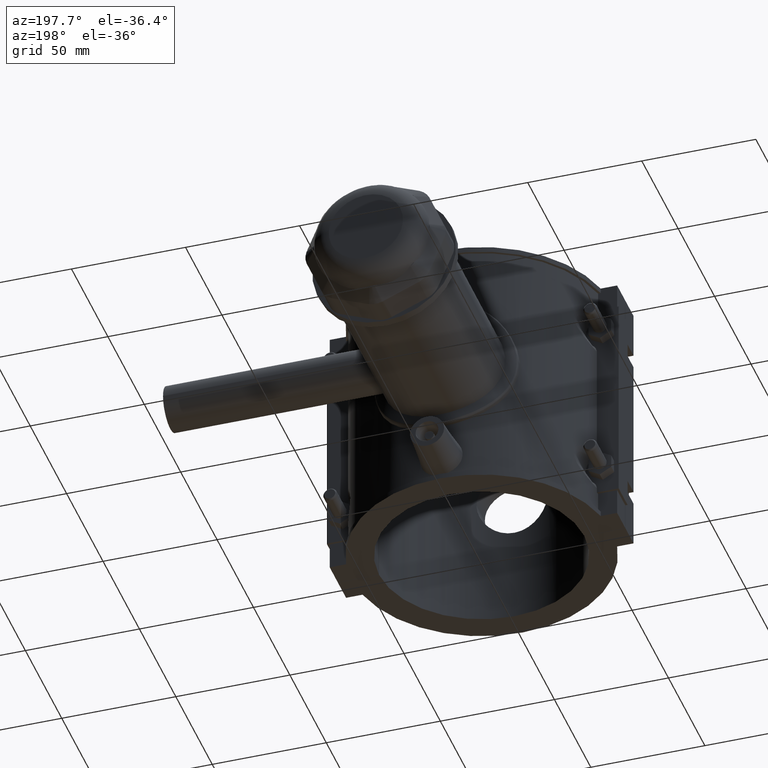
[diagram: clean part render]
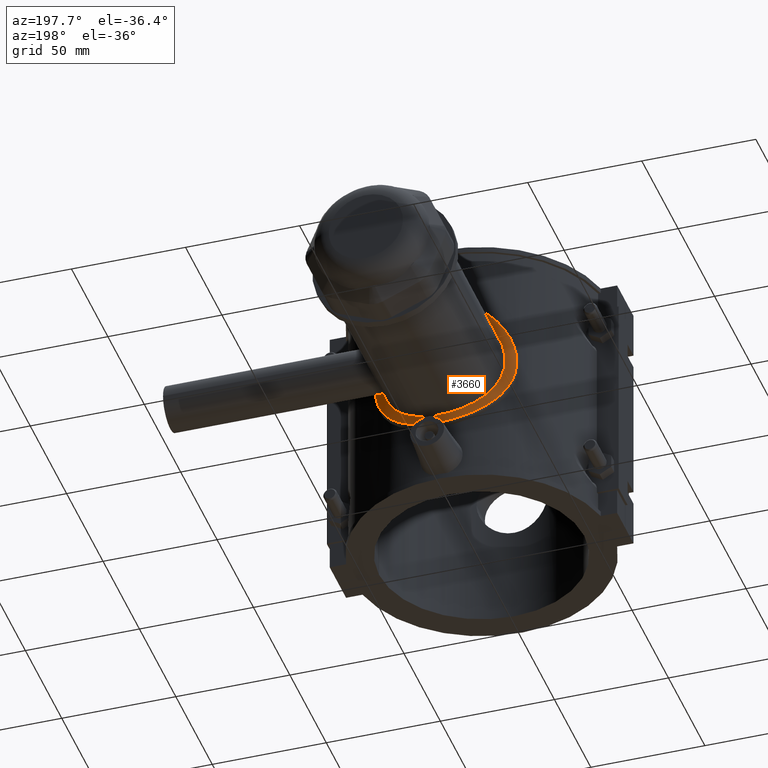
[diagram: same view with one face highlighted and labeled with its STEP entity id]
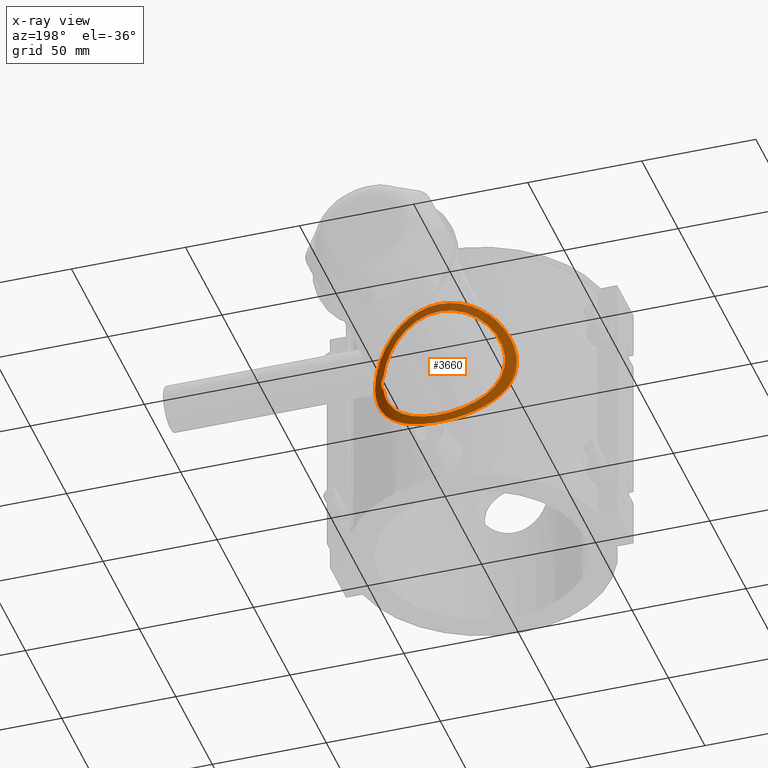
[diagram: x-ray of the same camera — body ghosted, the highlighted face saturated]
A machine part, auxiliary view. The second image highlights one B-rep face of the part: STEP entity #3660.
The next image is the same camera in x-ray: the body ghosted, the highlighted face saturated — about 32% of this face is hidden behind the body in this view.
In plain terms, the highlighted cylindrical surface (partial cylindrical patch) has radius 58.032 mm, axis along (0, 0, -1).
Its self-contained STEP definition (entity closure, byte-faithful):
#917=FACE_BOUND('',#1264,.T.);
#1028=FACE_OUTER_BOUND('',#1263,.T.);
#1263=EDGE_LOOP('',(#2753));
#1264=EDGE_LOOP('',(#2754,#2755));
#1462=B_SPLINE_CURVE_WITH_KNOTS('',3,(#5209,#5210,#5211,#5212,#5213,#5214,
#5215,#5216,#5217,#5218),.UNSPECIFIED.,.F.,.F.,(4,2,2,2,4),(1.34030727994941,
1.46295896579092,1.69628648260721,1.92961399942351,2.05226568526502),
 .UNSPECIFIED.);
#1505=B_SPLINE_CURVE_WITH_KNOTS('',3,(#5990,#5991,#5992,#5993,#5994,#5995,
#5996,#5997,#5998,#5999,#6000,#6001,#6002,#6003,#6004,#6005,#6006,#6007,
#6008,#6009,#6010,#6011,#6012,#6013,#6014,#6015,#6016,#6017,#6018,#6019,
#6020,#6021,#6022,#6023,#6024,#6025,#6026,#6027,#6028,#6029,#6030,#6031,
#6032,#6033,#6034,#6035,#6036,#6037,#6038,#6039,#6040,#6041,#6042,#6043,
#6044,#6045,#6046,#6047,#6048,#6049,#6050,#6051,#6052,#6053,#6054,#6055),
 .UNSPECIFIED.,.F.,.F.,(4,2,2,2,2,2,2,2,2,2,2,2,2,2,2,2,2,2,2,2,2,2,2,2,
2,2,2,2,2,2,2,2,4),(0.336490426190362,0.513364246909264,1.02672849381853,
1.54009274072779,2.05345698763705,2.56584796086913,3.0782389341012,3.59062990733328,
4.10302088056535,4.61541185379742,5.1278028270295,5.64019380026157,6.15258477349364,
6.66594902040291,7.17931326731217,7.69267751422144,8.2060417611307,8.71940600803996,
9.23277025494923,9.74613450185849,10.2594987487678,10.7718897219998,11.2842806952319,
11.796671668464,12.3090626416961,12.8214536149281,13.3338445881602,13.8462355613923,
14.3586265346243,14.8719907815336,15.3853550284429,15.8987192753521,16.075593096071),
 .UNSPECIFIED.);
#1508=B_SPLINE_CURVE_WITH_KNOTS('',3,(#6307,#6308,#6309,#6310,#6311,#6312,
#6313,#6314,#6315,#6316,#6317,#6318,#6319,#6320,#6321,#6322,#6323,#6324,
#6325,#6326,#6327,#6328,#6329),.UNSPECIFIED.,.T.,.F.,(4,1,1,1,1,1,1,1,1,
1,1,1,1,1,1,1,1,1,1,1,4),(9.7278193872929,10.4226636292424,11.1175078711919,
12.5071963550909,13.8968848389899,14.5917290809393,15.2865733228888,16.2130323121548,
18.0659502906868,18.9924092799528,19.9188682692188,20.8453272584848,21.7717862477508,
22.6982452370168,23.6247042262828,24.5511632155487,25.4776222048147,26.4040811940807,
27.7937696779797,28.4886139199292,29.1834581618787),.UNSPECIFIED.);
#1572=VERTEX_POINT('',#5207);
#1573=VERTEX_POINT('',#5208);
#1664=VERTEX_POINT('',#6305);
#1923=EDGE_CURVE('',#1572,#1573,#1462,.T.);
#2066=EDGE_CURVE('',#1573,#1572,#1505,.T.);
#2072=EDGE_CURVE('',#1664,#1664,#1508,.T.);
#2753=ORIENTED_EDGE('',*,*,#2072,.F.);
#2754=ORIENTED_EDGE('',*,*,#1923,.T.);
#2755=ORIENTED_EDGE('',*,*,#2066,.T.);
#3550=CYLINDRICAL_SURFACE('',#3909,58.032);
#3660=ADVANCED_FACE('',(#1028,#917),#3550,.T.);
#3909=AXIS2_PLACEMENT_3D('',#6353,#4394,#4395);
#4394=DIRECTION('center_axis',(0.,0.,-1.));
#4395=DIRECTION('ref_axis',(1.,0.,0.));
#5207=CARTESIAN_POINT('',(26.5571947943461,51.5987250681173,-3.40822969518685));
#5208=CARTESIAN_POINT('',(26.5571947943461,51.5987250681173,3.40822969518689));
#5209=CARTESIAN_POINT('Ctrl Pts',(26.5571947943462,51.5987250681173,-3.40822969518686));
#5210=CARTESIAN_POINT('Ctrl Pts',(26.7949117004733,51.4763752586289,-3.07073947306713));
#5211=CARTESIAN_POINT('Ctrl Pts',(27.0080779454478,51.3645329109714,-2.70457723681071));
#5212=CARTESIAN_POINT('Ctrl Pts',(27.5111274343721,51.0978487886751,-1.58602840086848));
#5213=CARTESIAN_POINT('Ctrl Pts',(27.6895833121411,51.,-0.77775838938765));
#5214=CARTESIAN_POINT('Ctrl Pts',(27.6895833121411,51.,0.77775838938765));
#5215=CARTESIAN_POINT('Ctrl Pts',(27.5111274343721,51.0978487886751,1.58602840086848));
#5216=CARTESIAN_POINT('Ctrl Pts',(27.0080779454478,51.3645329109714,2.70457723681072));
#5217=CARTESIAN_POINT('Ctrl Pts',(26.7949117004733,51.4763752586289,3.07073947306715));
#5218=CARTESIAN_POINT('Ctrl Pts',(26.5571947943461,51.5987250681173,3.40822969518688));
#5990=CARTESIAN_POINT('Ctrl Pts',(26.5571947943461,51.5987250681173,3.40822969518689));
#5991=CARTESIAN_POINT('Ctrl Pts',(26.4800132941901,51.6384493855584,4.00963403629059));
#5992=CARTESIAN_POINT('Ctrl Pts',(26.3819697486127,51.688707694066,4.61151769150396));
#5993=CARTESIAN_POINT('Ctrl Pts',(25.9176002863459,51.9243779518539,6.95180117817221));
#5994=CARTESIAN_POINT('Ctrl Pts',(25.3937610878862,52.1866439819032,8.6736565929714));
#5995=CARTESIAN_POINT('Ctrl Pts',(24.0205045253944,52.8327944564397,11.9620613228521));
#5996=CARTESIAN_POINT('Ctrl Pts',(23.1699969532652,53.2163937273955,13.5317154272648));
#5997=CARTESIAN_POINT('Ctrl Pts',(21.2140143143899,54.0259096784558,16.4292932972868));
#5998=CARTESIAN_POINT('Ctrl Pts',(20.1082959771635,54.4510411519475,17.7572721553761));
#5999=CARTESIAN_POINT('Ctrl Pts',(17.7595007772698,55.2616840467427,20.1060673552698));
#6000=CARTESIAN_POINT('Ctrl Pts',(16.4326119937272,55.6770326718015,21.2114817635876));
#6001=CARTESIAN_POINT('Ctrl Pts',(13.5345396493294,56.4515627818206,23.168382165925));
#6002=CARTESIAN_POINT('Ctrl Pts',(11.9632928238325,56.8101212212733,24.0200210129507));
#6003=CARTESIAN_POINT('Ctrl Pts',(8.67160142553016,57.4048219136669,25.3945885607132));
#6004=CARTESIAN_POINT('Ctrl Pts',(6.94809250869672,57.641064706949,25.9186125520985));
#6005=CARTESIAN_POINT('Ctrl Pts',(3.46630764737261,57.9547499464772,26.6089304076598));
#6006=CARTESIAN_POINT('Ctrl Pts',(1.70796991077358,58.032,26.775));
#6007=CARTESIAN_POINT('Ctrl Pts',(-1.70796991077358,58.032,26.775));
#6008=CARTESIAN_POINT('Ctrl Pts',(-3.46630764737261,57.9547499464772,26.6089304076598));
#6009=CARTESIAN_POINT('Ctrl Pts',(-6.94809250869672,57.641064706949,25.9186125520985));
#6010=CARTESIAN_POINT('Ctrl Pts',(-8.67160142553016,57.4048219136669,25.3945885607132));
#6011=CARTESIAN_POINT('Ctrl Pts',(-11.9632928238325,56.8101212212733,24.0200210129507));
#6012=CARTESIAN_POINT('Ctrl Pts',(-13.5345396493294,56.4515627818206,23.168382165925));
#6013=CARTESIAN_POINT('Ctrl Pts',(-16.4326119937272,55.6770326718015,21.2114817635876));
#6014=CARTESIAN_POINT('Ctrl Pts',(-17.7595007772698,55.2616840467427,20.1060673552698));
#6015=CARTESIAN_POINT('Ctrl Pts',(-20.1082959771635,54.4510411519475,17.7572721553761));
#6016=CARTESIAN_POINT('Ctrl Pts',(-21.2140143143899,54.0259096784558,16.4292932972868));
#6017=CARTESIAN_POINT('Ctrl Pts',(-23.1699969532652,53.2163937273955,13.5317154272648));
#6018=CARTESIAN_POINT('Ctrl Pts',(-24.0205045253944,52.8327944564397,11.9620613228521));
#6019=CARTESIAN_POINT('Ctrl Pts',(-25.3937610878862,52.1866439819032,8.6736565929714));
#6020=CARTESIAN_POINT('Ctrl Pts',(-25.9176002863459,51.9243779518539,6.95180117817221));
#6021=CARTESIAN_POINT('Ctrl Pts',(-26.608349436428,51.5738186591046,3.47063163382641));
#6022=CARTESIAN_POINT('Ctrl Pts',(-26.775,51.4860408169049,1.71121415636423));
#6023=CARTESIAN_POINT('Ctrl Pts',(-26.775,51.4860408169049,-1.71121415636419));
#6024=CARTESIAN_POINT('Ctrl Pts',(-26.608349436428,51.5738186591046,-3.47063163382638));
#6025=CARTESIAN_POINT('Ctrl Pts',(-25.9176002863459,51.9243779518539,-6.95180117817218));
#6026=CARTESIAN_POINT('Ctrl Pts',(-25.3937610878862,52.1866439819032,-8.67365659297137));
#6027=CARTESIAN_POINT('Ctrl Pts',(-24.0205045253944,52.8327944564397,-11.9620613228521));
#6028=CARTESIAN_POINT('Ctrl Pts',(-23.1699969532652,53.2163937273955,-13.5317154272648));
#6029=CARTESIAN_POINT('Ctrl Pts',(-21.2140143143899,54.0259096784558,-16.4292932972868));
#6030=CARTESIAN_POINT('Ctrl Pts',(-20.1082959771635,54.4510411519475,-17.7572721553761));
#6031=CARTESIAN_POINT('Ctrl Pts',(-17.7595007772698,55.2616840467427,-20.1060673552698));
#6032=CARTESIAN_POINT('Ctrl Pts',(-16.4326119937272,55.6770326718015,-21.2114817635876));
#6033=CARTESIAN_POINT('Ctrl Pts',(-13.5345396493294,56.4515627818206,-23.168382165925));
#6034=CARTESIAN_POINT('Ctrl Pts',(-11.9632928238325,56.8101212212733,-24.0200210129507));
#6035=CARTESIAN_POINT('Ctrl Pts',(-8.67160142553017,57.4048219136669,-25.3945885607132));
#6036=CARTESIAN_POINT('Ctrl Pts',(-6.94809250869673,57.641064706949,-25.9186125520985));
#6037=CARTESIAN_POINT('Ctrl Pts',(-3.46630764737262,57.9547499464772,-26.6089304076598));
#6038=CARTESIAN_POINT('Ctrl Pts',(-1.70796991077358,58.032,-26.775));
#6039=CARTESIAN_POINT('Ctrl Pts',(1.70796991077358,58.032,-26.775));
#6040=CARTESIAN_POINT('Ctrl Pts',(3.46630764737261,57.9547499464772,-26.6089304076598));
#6041=CARTESIAN_POINT('Ctrl Pts',(6.94809250869672,57.641064706949,-25.9186125520985));
#6042=CARTESIAN_POINT('Ctrl Pts',(8.67160142553016,57.4048219136669,-25.3945885607132));
#6043=CARTESIAN_POINT('Ctrl Pts',(11.9632928238325,56.8101212212733,-24.0200210129507));
#6044=CARTESIAN_POINT('Ctrl Pts',(13.5345396493294,56.4515627818206,-23.168382165925));
#6045=CARTESIAN_POINT('Ctrl Pts',(16.4326119937272,55.6770326718015,-21.2114817635876));
#6046=CARTESIAN_POINT('Ctrl Pts',(17.7595007772698,55.2616840467427,-20.1060673552698));
#6047=CARTESIAN_POINT('Ctrl Pts',(20.1082959771635,54.4510411519475,-17.7572721553761));
#6048=CARTESIAN_POINT('Ctrl Pts',(21.2140143143899,54.0259096784558,-16.4292932972868));
#6049=CARTESIAN_POINT('Ctrl Pts',(23.1699969532652,53.2163937273955,-13.5317154272648));
#6050=CARTESIAN_POINT('Ctrl Pts',(24.0205045253944,52.8327944564397,-11.9620613228521));
#6051=CARTESIAN_POINT('Ctrl Pts',(25.3937610878862,52.1866439819032,-8.67365659297137));
#6052=CARTESIAN_POINT('Ctrl Pts',(25.9176002863459,51.9243779518539,-6.95180117817218));
#6053=CARTESIAN_POINT('Ctrl Pts',(26.3819697486127,51.688707694066,-4.61151769150393));
#6054=CARTESIAN_POINT('Ctrl Pts',(26.4800132941901,51.6384493855584,-4.00963403629056));
#6055=CARTESIAN_POINT('Ctrl Pts',(26.5571947943461,51.5987250681173,-3.40822969518686));
#6305=CARTESIAN_POINT('',(31.0820333525128,49.0063284349408,-0.0222753062918368));
#6307=CARTESIAN_POINT('Ctrl Pts',(31.0820223820684,49.0059703302184,-0.0222858323462511));
#6308=CARTESIAN_POINT('Ctrl Pts',(31.0839814996098,49.0049860519977,2.3135580412902));
#6309=CARTESIAN_POINT('Ctrl Pts',(30.5405230500433,49.3573611761775,6.98590154633044));
#6310=CARTESIAN_POINT('Ctrl Pts',(27.3815210641472,51.2444524817275,15.6795971029494));
#6311=CARTESIAN_POINT('Ctrl Pts',(20.1558738190674,54.8376501900964,24.5955025535998));
#6312=CARTESIAN_POINT('Ctrl Pts',(9.52508566226278,57.5875110247322,29.784380134639));
#6313=CARTESIAN_POINT('Ctrl Pts',(0.0198293265515184,58.1799242128342,30.8691999790419));
#6314=CARTESIAN_POINT('Ctrl Pts',(-7.88854630069219,57.6878327014526,29.9788546287794));
#6315=CARTESIAN_POINT('Ctrl Pts',(-18.8411762371562,55.4141929860112,25.6455612746755));
#6316=CARTESIAN_POINT('Ctrl Pts',(-27.3702277177527,51.3248413240704,16.600890128815));
#6317=CARTESIAN_POINT('Ctrl Pts',(-31.1962240799899,48.9343412860689,4.77817845864783));
#6318=CARTESIAN_POINT('Ctrl Pts',(-31.2028829274086,48.933912067101,-4.73225595627528));
#6319=CARTESIAN_POINT('Ctrl Pts',(-28.3475521069123,50.7078211625906,-13.6109746382715));
#6320=CARTESIAN_POINT('Ctrl Pts',(-23.134620395044,53.3660330461134,-21.0847232014585));
#6321=CARTESIAN_POINT('Ctrl Pts',(-15.9584033133263,56.0028353366657,-26.7829300077152));
#6322=CARTESIAN_POINT('Ctrl Pts',(-7.20497749980306,57.8384010464894,-30.2556676334183));
#6323=CARTESIAN_POINT('Ctrl Pts',(2.39767302901777,58.2508460591175,-30.9949941389532));
#6324=CARTESIAN_POINT('Ctrl Pts',(11.704121633245,57.073565207824,-28.8473609784939));
#6325=CARTESIAN_POINT('Ctrl Pts',(21.0742786818254,54.36615858328,-23.434769873223));
#6326=CARTESIAN_POINT('Ctrl Pts',(27.3640562507643,51.2593557986685,-15.7178339263339));
#6327=CARTESIAN_POINT('Ctrl Pts',(30.5287683447951,49.3632668455017,-7.02916169548831));
#6328=CARTESIAN_POINT('Ctrl Pts',(31.0800632645271,49.0069546084391,-2.35812970598271));
#6329=CARTESIAN_POINT('Ctrl Pts',(31.0820223820684,49.0059703302184,-0.0222858323462511));
#6353=CARTESIAN_POINT('Origin',(0.,0.,59.));